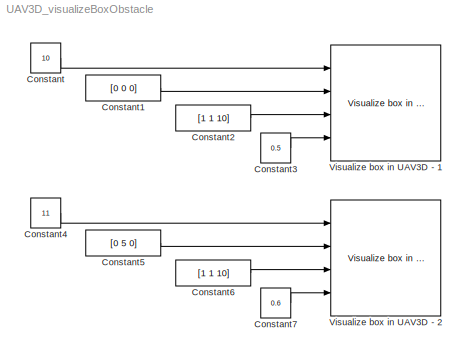
MODEL UAV3D_visualizeBoxObstacle
KIND model
BLOCK [Constant] Constant
  SID = 536
  Value = 10
BLOCK [Constant] Constant1
  SID = 537
  Value = [0 0 0]
BLOCK [Constant] Constant2
  SID = 538
  Value = [1 1 10]
BLOCK [Constant] Constant3
  SID = 539
  Value = 0.5
BLOCK [Constant] Constant4
  SID = 540
  Value = 11
BLOCK [Constant] Constant5
  SID = 541
  Value = [0 5 0]
BLOCK [Constant] Constant6
  SID = 542
  Value = [1 1 10]
BLOCK [Constant] Constant7
  SID = 543
  Value = 0.6
BLOCK [Reference] Visualize box in UAV3D - 1  REF=uavsimBlockset_UAV3D_visualizeBox/Visualize box in UAV3D
  Ports = [4]
  SID = 535
  SourceBlock = uavsimBlockset_UAV3D_visualizeBox/Visualize box in UAV3D
  SourceType = SubSystem
BLOCK [Reference] Visualize box in UAV3D - 2  REF=uavsimBlockset_UAV3D_visualizeBox/Visualize box in UAV3D
  Ports = [4]
  SID = 544
  SourceBlock = uavsimBlockset_UAV3D_visualizeBox/Visualize box in UAV3D
  SourceType = SubSystem
LINE Constant1:1 -> Visualize box in UAV3D - 1:2
LINE Constant2:1 -> Visualize box in UAV3D - 1:3
LINE Constant3:1 -> Visualize box in UAV3D - 1:4
LINE Constant4:1 -> Visualize box in UAV3D - 2:1
LINE Constant5:1 -> Visualize box in UAV3D - 2:2
LINE Constant6:1 -> Visualize box in UAV3D - 2:3
LINE Constant7:1 -> Visualize box in UAV3D - 2:4
LINE Constant:1 -> Visualize box in UAV3D - 1:1
